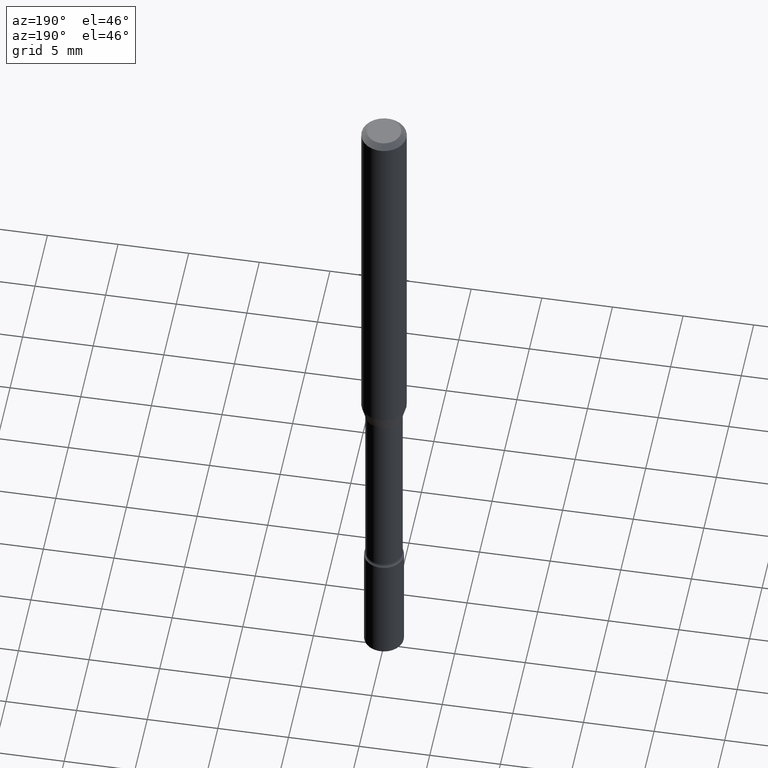
[diagram: clean part render]
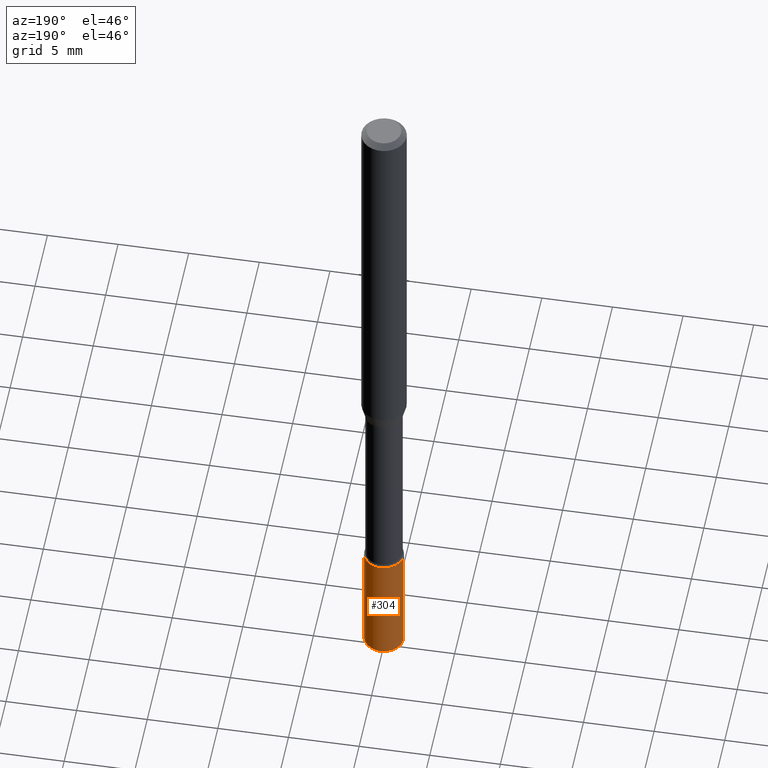
[diagram: same view with one face highlighted and labeled with its STEP entity id]
A machine part, auxiliary view. The second image highlights one B-rep face of the part: STEP entity #304.
In plain terms, the highlighted cylindrical surface (edge-blend (fillet) strip) has radius 1.397 mm, axis along (-0, 0, 1).
Its self-contained STEP definition (entity closure, byte-faithful):
#19 = AXIS2_PLACEMENT_3D ( 'NONE', #347, #306, #474 ) ;
#30 = LINE ( 'NONE', #115, #463 ) ;
#39 = DIRECTION ( 'NONE',  ( 1.000000000000000000, -6.982962677686262766E-15, 0.000000000000000000 ) ) ;
#61 = VERTEX_POINT ( 'NONE', #376 ) ;
#63 = DIRECTION ( 'NONE',  ( -2.445468806185136877E-29, 3.491481338843145188E-15, 1.000000000000000000 ) ) ;
#70 = FACE_OUTER_BOUND ( 'NONE', #289, .T. ) ;
#74 = DIRECTION ( 'NONE',  ( -2.445468806185136597E-29, 3.491481338843145583E-15, 1.000000000000000000 ) ) ;
#111 = CARTESIAN_POINT ( 'NONE',  ( 0.05500000000000000028, -6.214836783140797252E-15, -1.669999999999999929 ) ) ;
#115 = CARTESIAN_POINT ( 'NONE',  ( 0.05500000000000000028, -3.840629472727446888E-16, 2.681897226687764826E-30 ) ) ;
#137 = CIRCLE ( 'NONE', #19, 0.05500000000000000028 ) ;
#148 = DIRECTION ( 'NONE',  ( 1.000000000000000000, -6.982962677686266711E-15, 4.876176775795935793E-29 ) ) ;
#153 = DIRECTION ( 'NONE',  ( -2.445468806185136877E-29, 3.491481338843145188E-15, 1.000000000000000000 ) ) ;
#174 = AXIS2_PLACEMENT_3D ( 'NONE', #232, #74, #39 ) ;
#177 = LINE ( 'NONE', #241, #224 ) ;
#209 = ORIENTED_EDGE ( 'NONE', *, *, #424, .T. ) ;
#221 = DIRECTION ( 'NONE',  ( -2.445468806185136597E-29, 3.491481338843145583E-15, 1.000000000000000000 ) ) ;
#224 = VECTOR ( 'NONE', #153, 39.37007874015748143 ) ;
#225 = ORIENTED_EDGE ( 'NONE', *, *, #365, .F. ) ;
#232 = CARTESIAN_POINT ( 'NONE',  ( 4.890937612370273194E-29, -6.982962677686291165E-15, -2.000000000000000000 ) ) ;
#234 = CARTESIAN_POINT ( 'NONE',  ( -0.05500000000000000028, -6.016069752109117450E-15, -1.669999999999999929 ) ) ;
#241 = CARTESIAN_POINT ( 'NONE',  ( -0.05500000000000000028, 3.907985046680551042E-16, -2.705414299640198362E-30 ) ) ;
#242 = ORIENTED_EDGE ( 'NONE', *, *, #300, .F. ) ;
#243 = VERTEX_POINT ( 'NONE', #234 ) ;
#254 = EDGE_CURVE ( 'NONE', #319, #61, #421, .T. ) ;
#256 = ORIENTED_EDGE ( 'NONE', *, *, #254, .T. ) ;
#269 = CARTESIAN_POINT ( 'NONE',  ( 0.000000000000000000, 0.000000000000000000, 0.000000000000000000 ) ) ;
#289 = EDGE_LOOP ( 'NONE', ( #256, #209, #225, #242 ) ) ;
#300 = EDGE_CURVE ( 'NONE', #319, #370, #30, .T. ) ;
#304 = ADVANCED_FACE ( 'NONE', ( #70 ), #430, .T. ) ;
#306 = DIRECTION ( 'NONE',  ( -2.445468806185136597E-29, 3.491481338843145583E-15, 1.000000000000000000 ) ) ;
#319 = VERTEX_POINT ( 'NONE', #355 ) ;
#347 = CARTESIAN_POINT ( 'NONE',  ( 4.083932906329177803E-29, -5.830773835868053056E-15, -1.669999999999999929 ) ) ;
#355 = CARTESIAN_POINT ( 'NONE',  ( 0.05500000000000000028, -7.367025624959035361E-15, -2.000000000000000000 ) ) ;
#365 = EDGE_CURVE ( 'NONE', #370, #243, #137, .T. ) ;
#370 = VERTEX_POINT ( 'NONE', #111 ) ;
#376 = CARTESIAN_POINT ( 'NONE',  ( -0.05500000000000000028, -6.016069752109117450E-15, -2.000000000000000000 ) ) ;
#421 = CIRCLE ( 'NONE', #174, 0.05500000000000000028 ) ;
#424 = EDGE_CURVE ( 'NONE', #61, #243, #177, .T. ) ;
#430 = CYLINDRICAL_SURFACE ( 'NONE', #510, 0.05500000000000000028 ) ;
#463 = VECTOR ( 'NONE', #63, 39.37007874015748143 ) ;
#474 = DIRECTION ( 'NONE',  ( 1.000000000000000000, -6.982962677686262766E-15, 0.000000000000000000 ) ) ;
#510 = AXIS2_PLACEMENT_3D ( 'NONE', #269, #221, #148 ) ;